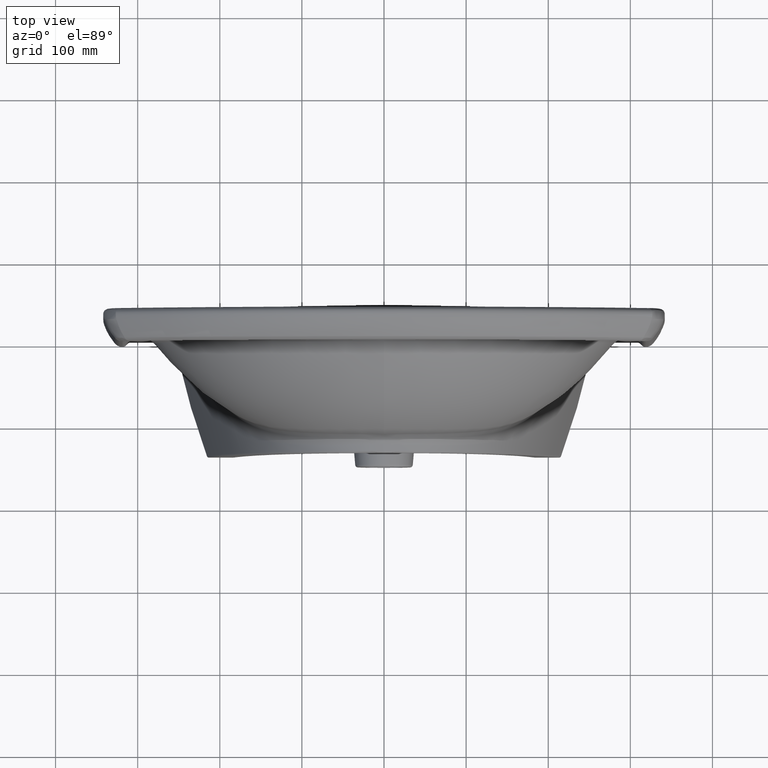
[diagram: clean part render]
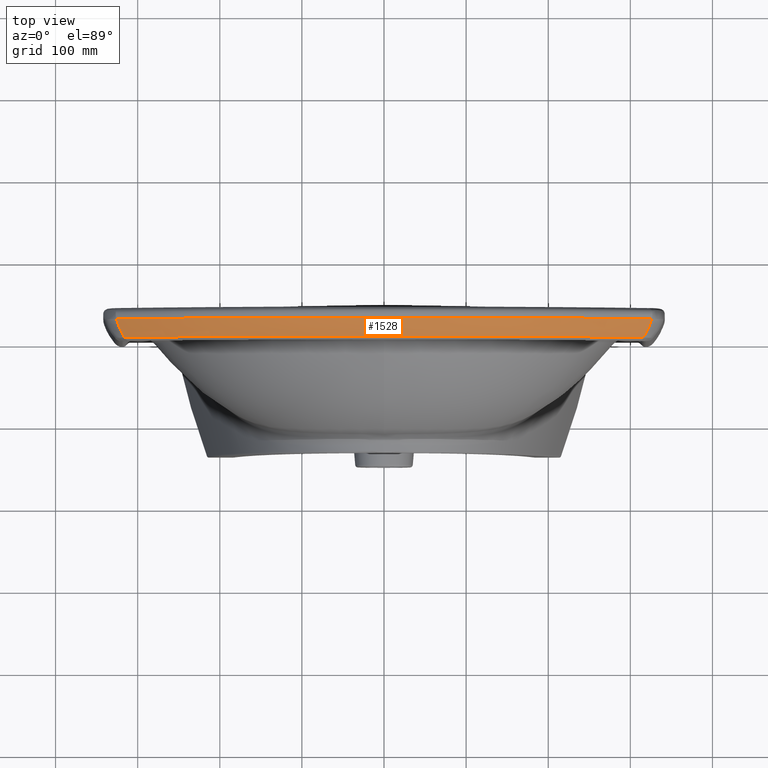
[diagram: same view with one face highlighted and labeled with its STEP entity id]
A machine part, top view. The second image highlights one B-rep face of the part: STEP entity #1528.
In plain terms, the highlighted toroidal blend (fillet) surface has major radius 470.67 mm and minor (blend) radius 70 mm.
Its self-contained STEP definition (entity closure, byte-faithful):
#161=TOROIDAL_SURFACE('',#7575,470.6704121032,70.);
#384=CIRCLE('',#7573,536.8040096475);
#385=CIRCLE('',#7574,523.9021206073);
#1528=ADVANCED_FACE('',(#2053),#161,.T.);
#2053=FACE_OUTER_BOUND('',#2541,.T.);
#2541=EDGE_LOOP('',(#4694,#4695,#4696,#4697));
#4694=ORIENTED_EDGE('',*,*,#6565,.T.);
#4695=ORIENTED_EDGE('',*,*,#6562,.F.);
#4696=ORIENTED_EDGE('',*,*,#6571,.T.);
#4697=ORIENTED_EDGE('',*,*,#6568,.F.);
#5463=VERTEX_POINT('',#43049);
#5464=VERTEX_POINT('',#43082);
#5465=VERTEX_POINT('',#43140);
#5466=VERTEX_POINT('',#43257);
#6562=EDGE_CURVE('',#5463,#5464,#384,.T.);
#6565=EDGE_CURVE('',#5465,#5464,#7281,.T.);
#6568=EDGE_CURVE('',#5465,#5466,#385,.T.);
#6571=EDGE_CURVE('',#5463,#5466,#7287,.T.);
#7281=B_SPLINE_CURVE_WITH_KNOTS('',3,(#43136,#43137,#43138,#43139),
 .UNSPECIFIED.,.F.,.F.,(4,4),(0.,1.),.UNSPECIFIED.);
#7287=B_SPLINE_CURVE_WITH_KNOTS('',3,(#43354,#43355,#43356,#43357),
 .UNSPECIFIED.,.F.,.F.,(4,4),(0.,1.),.UNSPECIFIED.);
#7573=AXIS2_PLACEMENT_3D('',#43081,#8276,#8277);
#7574=AXIS2_PLACEMENT_3D('',#43256,#8279,#8280);
#7575=AXIS2_PLACEMENT_3D('',#43382,#8282,#8283);
#8276=DIRECTION('',(0.,1.,0.));
#8277=DIRECTION('',(-0.607363303401623,0.,0.79442420512033));
#8279=DIRECTION('',(0.,-1.,0.));
#8280=DIRECTION('',(0.602985963926985,0.,0.79775179555238));
#8282=DIRECTION('',(0.,1.,0.));
#8283=DIRECTION('',(0.,0.,1.));
#43049=CARTESIAN_POINT('',(-326.035174675,126.7225802851,193.4502317357));
#43081=CARTESIAN_POINT('',(0.,126.7225343419,-233.));
#43082=CARTESIAN_POINT('',(326.0350544986,126.7225343419,193.45010026));
#43136=CARTESIAN_POINT('',(315.906102024384,104.208146959382,184.944420726127));
#43137=CARTESIAN_POINT('',(320.43932927373,110.990085533285,188.777456395359));
#43138=CARTESIAN_POINT('',(323.845835574836,118.709398920546,191.624667625652));
#43139=CARTESIAN_POINT('',(326.035061248352,126.722533736914,193.450094835335));
#43140=CARTESIAN_POINT('',(315.9061935924,104.208017284,184.9445418708));
#43256=CARTESIAN_POINT('',(0.,104.2072840107,-233.));
#43257=CARTESIAN_POINT('',(-315.9056250061,104.2072840107,184.9438575531));
#43354=CARTESIAN_POINT('',(-326.035087122143,126.722630292442,193.450117217576));
#43355=CARTESIAN_POINT('',(-323.845769729384,118.70912331082,191.624614123787));
#43356=CARTESIAN_POINT('',(-320.439196712034,110.989840696256,188.777294614657));
#43357=CARTESIAN_POINT('',(-315.906132493216,104.208146161355,184.944396841831));
#43382=CARTESIAN_POINT('',(0.,149.6647939484,-233.));